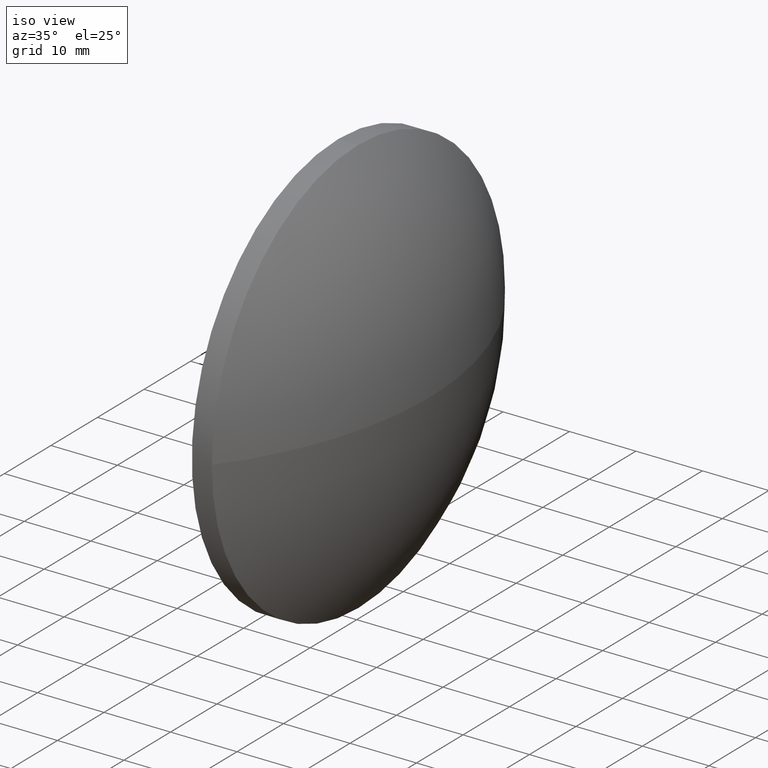
[diagram: clean part render]
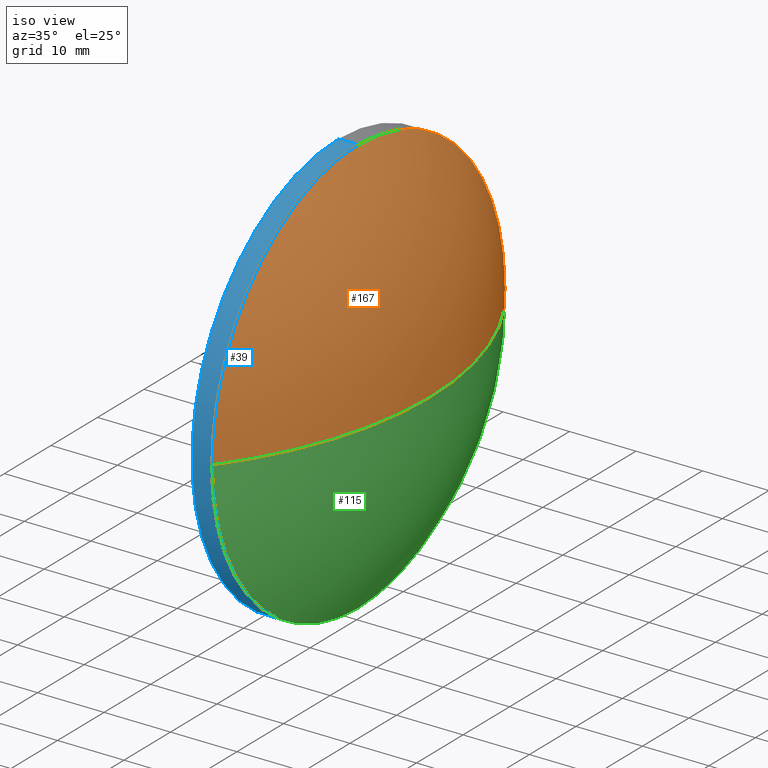
[diagram: same view with three faces highlighted in distinct colors, each labeled with its STEP entity id]
A machine part, iso view with three faces highlighted in distinct colors.
Their STEP definitions:

[orange] entity #167 — the highlighted spherical surface has radius 51.6403 mm.
#1 = ORIENTED_EDGE ( 'NONE', *, *, #159, .F. ) ;
#3 = CIRCLE ( 'NONE', #48, 31.50000000000000000 ) ;
#9 = CARTESIAN_POINT ( 'NONE',  ( 229.8933010013870400, 162.0185814569561000, 0.0000000000000000000 ) ) ;
#10 = CARTESIAN_POINT ( 'NONE',  ( 229.8933010013870400, 130.5185814569561000, 0.0000000000000000000 ) ) ;
#11 = AXIS2_PLACEMENT_3D ( 'NONE', #153, #47, #186 ) ;
#14 = CIRCLE ( 'NONE', #93, 51.64031716417910900 ) ;
#15 = DIRECTION ( 'NONE',  ( 0.0000000000000000000, 1.000000000000000000, 0.0000000000000000000 ) ) ;
#27 = DIRECTION ( 'NONE',  ( -0.0000000000000000000, 0.0000000000000000000, -1.000000000000000000 ) ) ;
#31 = CIRCLE ( 'NONE', #145, 31.50000000000000000 ) ;
#32 = EDGE_CURVE ( 'NONE', #37, #65, #3, .T. ) ;
#37 = VERTEX_POINT ( 'NONE', #128 ) ;
#40 = DIRECTION ( 'NONE',  ( -1.000000000000000000, -0.0000000000000000000, -0.0000000000000000000 ) ) ;
#47 = DIRECTION ( 'NONE',  ( 0.0000000000000000000, 1.224646799147353200E-016, -1.000000000000000000 ) ) ;
#48 = AXIS2_PLACEMENT_3D ( 'NONE', #184, #40, #151 ) ;
#53 = SPHERICAL_SURFACE ( 'NONE', #143, 51.64031716417910900 ) ;
#61 = ORIENTED_EDGE ( 'NONE', *, *, #112, .F. ) ;
#63 = ORIENTED_EDGE ( 'NONE', *, *, #77, .T. ) ;
#65 = VERTEX_POINT ( 'NONE', #9 ) ;
#69 = DIRECTION ( 'NONE',  ( 0.0000000000000000000, 0.0000000000000000000, 1.000000000000000000 ) ) ;
#75 = VERTEX_POINT ( 'NONE', #114 ) ;
#77 = EDGE_CURVE ( 'NONE', #75, #65, #14, .T. ) ;
#80 = CARTESIAN_POINT ( 'NONE',  ( 188.9729838372079500, 130.5185814569561000, 0.0000000000000000000 ) ) ;
#82 = CARTESIAN_POINT ( 'NONE',  ( 188.9729838372079500, 130.5185814569561000, 0.0000000000000000000 ) ) ;
#85 = VERTEX_POINT ( 'NONE', #164 ) ;
#93 = AXIS2_PLACEMENT_3D ( 'NONE', #80, #97, #181 ) ;
#97 = DIRECTION ( 'NONE',  ( -0.0000000000000000000, 0.0000000000000000000, 1.000000000000000000 ) ) ;
#98 = ORIENTED_EDGE ( 'NONE', *, *, #32, .F. ) ;
#112 = EDGE_CURVE ( 'NONE', #85, #37, #31, .T. ) ;
#113 = DIRECTION ( 'NONE',  ( -1.000000000000000000, -0.0000000000000000000, -0.0000000000000000000 ) ) ;
#114 = CARTESIAN_POINT ( 'NONE',  ( 240.6133010013870700, 130.5185814569561000, 0.0000000000000000000 ) ) ;
#124 = FACE_OUTER_BOUND ( 'NONE', #142, .T. ) ;
#128 = CARTESIAN_POINT ( 'NONE',  ( 229.8933010013870400, 130.5185814569561000, 31.50000000000000000 ) ) ;
#142 = EDGE_LOOP ( 'NONE', ( #1, #63, #98, #61 ) ) ;
#143 = AXIS2_PLACEMENT_3D ( 'NONE', #82, #27, #15 ) ;
#145 = AXIS2_PLACEMENT_3D ( 'NONE', #10, #113, #69 ) ;
#151 = DIRECTION ( 'NONE',  ( 0.0000000000000000000, 0.0000000000000000000, 1.000000000000000000 ) ) ;
#153 = CARTESIAN_POINT ( 'NONE',  ( 188.9729838372079500, 130.5185814569561000, 0.0000000000000000000 ) ) ;
#159 = EDGE_CURVE ( 'NONE', #75, #85, #160, .T. ) ;
#160 = CIRCLE ( 'NONE', #11, 51.64031716417910900 ) ;
#164 = CARTESIAN_POINT ( 'NONE',  ( 229.8933010013870400, 99.01858145695611300, -3.857637417314162700E-015 ) ) ;
#167 = ADVANCED_FACE ( 'NONE', ( #124 ), #53, .T. ) ;
#181 = DIRECTION ( 'NONE',  ( 1.000000000000000000, 0.0000000000000000000, 0.0000000000000000000 ) ) ;
#184 = CARTESIAN_POINT ( 'NONE',  ( 229.8933010013870400, 130.5185814569561000, 0.0000000000000000000 ) ) ;
#186 = DIRECTION ( 'NONE',  ( 0.0000000000000000000, 1.000000000000000000, 1.224646799147353200E-016 ) ) ;

[blue] entity #39 — the highlighted cylindrical surface (partial cylindrical patch) has radius 31.5 mm, axis along (-1, -0, -0).
#10 = CARTESIAN_POINT ( 'NONE',  ( 229.8933010013870400, 130.5185814569561000, 0.0000000000000000000 ) ) ;
#19 = CARTESIAN_POINT ( 'NONE',  ( 218.1236667371545400, 130.5185814569561000, -31.50000000000000000 ) ) ;
#20 = EDGE_CURVE ( 'NONE', #170, #126, #147, .T. ) ;
#29 = CARTESIAN_POINT ( 'NONE',  ( 226.8933010013870400, 130.5185814569561000, -31.50000000000000000 ) ) ;
#31 = CIRCLE ( 'NONE', #145, 31.50000000000000000 ) ;
#34 = EDGE_CURVE ( 'NONE', #41, #170, #146, .T. ) ;
#36 = DIRECTION ( 'NONE',  ( -1.000000000000000000, -0.0000000000000000000, -0.0000000000000000000 ) ) ;
#37 = VERTEX_POINT ( 'NONE', #128 ) ;
#39 = ADVANCED_FACE ( 'NONE', ( #51 ), #102, .T. ) ;
#41 = VERTEX_POINT ( 'NONE', #106 ) ;
#45 = ORIENTED_EDGE ( 'NONE', *, *, #112, .T. ) ;
#51 = FACE_OUTER_BOUND ( 'NONE', #79, .T. ) ;
#66 = DIRECTION ( 'NONE',  ( -1.000000000000000000, -0.0000000000000000000, -0.0000000000000000000 ) ) ;
#68 = CARTESIAN_POINT ( 'NONE',  ( 226.8933010013870400, 130.5185814569561000, 31.50000000000000000 ) ) ;
#69 = DIRECTION ( 'NONE',  ( 0.0000000000000000000, 0.0000000000000000000, 1.000000000000000000 ) ) ;
#71 = ORIENTED_EDGE ( 'NONE', *, *, #20, .F. ) ;
#78 = CARTESIAN_POINT ( 'NONE',  ( 226.8933010013870400, 130.5185814569561000, 0.0000000000000000000 ) ) ;
#79 = EDGE_LOOP ( 'NONE', ( #100, #140, #45, #103, #71 ) ) ;
#85 = VERTEX_POINT ( 'NONE', #164 ) ;
#89 = LINE ( 'NONE', #148, #158 ) ;
#90 = EDGE_CURVE ( 'NONE', #41, #85, #131, .T. ) ;
#94 = DIRECTION ( 'NONE',  ( 0.0000000000000000000, 0.0000000000000000000, 1.000000000000000000 ) ) ;
#96 = CARTESIAN_POINT ( 'NONE',  ( 229.8933010013870400, 130.5185814569561000, 0.0000000000000000000 ) ) ;
#100 = ORIENTED_EDGE ( 'NONE', *, *, #34, .F. ) ;
#102 = CYLINDRICAL_SURFACE ( 'NONE', #144, 31.50000000000000000 ) ;
#103 = ORIENTED_EDGE ( 'NONE', *, *, #139, .T. ) ;
#104 = DIRECTION ( 'NONE',  ( -1.000000000000000000, -0.0000000000000000000, -0.0000000000000000000 ) ) ;
#106 = CARTESIAN_POINT ( 'NONE',  ( 229.8933010013870400, 130.5185814569561000, -31.50000000000000000 ) ) ;
#112 = EDGE_CURVE ( 'NONE', #85, #37, #31, .T. ) ;
#113 = DIRECTION ( 'NONE',  ( -1.000000000000000000, -0.0000000000000000000, -0.0000000000000000000 ) ) ;
#121 = VECTOR ( 'NONE', #104, 1000.000000000000000 ) ;
#126 = VERTEX_POINT ( 'NONE', #68 ) ;
#128 = CARTESIAN_POINT ( 'NONE',  ( 229.8933010013870400, 130.5185814569561000, 31.50000000000000000 ) ) ;
#130 = DIRECTION ( 'NONE',  ( 0.0000000000000000000, 0.0000000000000000000, 1.000000000000000000 ) ) ;
#131 = CIRCLE ( 'NONE', #136, 31.50000000000000000 ) ;
#135 = DIRECTION ( 'NONE',  ( -1.000000000000000000, -0.0000000000000000000, -0.0000000000000000000 ) ) ;
#136 = AXIS2_PLACEMENT_3D ( 'NONE', #96, #166, #94 ) ;
#139 = EDGE_CURVE ( 'NONE', #37, #126, #89, .T. ) ;
#140 = ORIENTED_EDGE ( 'NONE', *, *, #90, .T. ) ;
#144 = AXIS2_PLACEMENT_3D ( 'NONE', #162, #135, #130 ) ;
#145 = AXIS2_PLACEMENT_3D ( 'NONE', #10, #113, #69 ) ;
#146 = LINE ( 'NONE', #19, #121 ) ;
#147 = CIRCLE ( 'NONE', #179, 31.50000000000000000 ) ;
#148 = CARTESIAN_POINT ( 'NONE',  ( 218.1236667371545400, 130.5185814569561000, 31.50000000000000000 ) ) ;
#150 = DIRECTION ( 'NONE',  ( 0.0000000000000000000, 0.0000000000000000000, 1.000000000000000000 ) ) ;
#158 = VECTOR ( 'NONE', #66, 1000.000000000000000 ) ;
#162 = CARTESIAN_POINT ( 'NONE',  ( 218.1236667371545400, 130.5185814569561000, 0.0000000000000000000 ) ) ;
#164 = CARTESIAN_POINT ( 'NONE',  ( 229.8933010013870400, 99.01858145695611300, -3.857637417314162700E-015 ) ) ;
#166 = DIRECTION ( 'NONE',  ( -1.000000000000000000, -0.0000000000000000000, -0.0000000000000000000 ) ) ;
#170 = VERTEX_POINT ( 'NONE', #29 ) ;
#179 = AXIS2_PLACEMENT_3D ( 'NONE', #78, #36, #150 ) ;

[green] entity #115 — the highlighted spherical surface has radius 51.6403 mm.
#6 = ORIENTED_EDGE ( 'NONE', *, *, #159, .T. ) ;
#7 = DIRECTION ( 'NONE',  ( 0.0000000000000000000, 0.0000000000000000000, 1.000000000000000000 ) ) ;
#9 = CARTESIAN_POINT ( 'NONE',  ( 229.8933010013870400, 162.0185814569561000, 0.0000000000000000000 ) ) ;
#11 = AXIS2_PLACEMENT_3D ( 'NONE', #153, #47, #186 ) ;
#14 = CIRCLE ( 'NONE', #93, 51.64031716417910900 ) ;
#25 = ORIENTED_EDGE ( 'NONE', *, *, #77, .F. ) ;
#33 = ORIENTED_EDGE ( 'NONE', *, *, #90, .F. ) ;
#35 = SPHERICAL_SURFACE ( 'NONE', #88, 51.64031716417910900 ) ;
#38 = DIRECTION ( 'NONE',  ( 0.0000000000000000000, 1.000000000000000000, 0.0000000000000000000 ) ) ;
#41 = VERTEX_POINT ( 'NONE', #106 ) ;
#47 = DIRECTION ( 'NONE',  ( 0.0000000000000000000, 1.224646799147353200E-016, -1.000000000000000000 ) ) ;
#62 = FACE_OUTER_BOUND ( 'NONE', #107, .T. ) ;
#65 = VERTEX_POINT ( 'NONE', #9 ) ;
#75 = VERTEX_POINT ( 'NONE', #114 ) ;
#77 = EDGE_CURVE ( 'NONE', #75, #65, #14, .T. ) ;
#80 = CARTESIAN_POINT ( 'NONE',  ( 188.9729838372079500, 130.5185814569561000, 0.0000000000000000000 ) ) ;
#81 = EDGE_CURVE ( 'NONE', #65, #41, #177, .T. ) ;
#84 = CARTESIAN_POINT ( 'NONE',  ( 188.9729838372079500, 130.5185814569561000, 0.0000000000000000000 ) ) ;
#85 = VERTEX_POINT ( 'NONE', #164 ) ;
#88 = AXIS2_PLACEMENT_3D ( 'NONE', #84, #134, #38 ) ;
#90 = EDGE_CURVE ( 'NONE', #41, #85, #131, .T. ) ;
#93 = AXIS2_PLACEMENT_3D ( 'NONE', #80, #97, #181 ) ;
#94 = DIRECTION ( 'NONE',  ( 0.0000000000000000000, 0.0000000000000000000, 1.000000000000000000 ) ) ;
#96 = CARTESIAN_POINT ( 'NONE',  ( 229.8933010013870400, 130.5185814569561000, 0.0000000000000000000 ) ) ;
#97 = DIRECTION ( 'NONE',  ( -0.0000000000000000000, 0.0000000000000000000, 1.000000000000000000 ) ) ;
#106 = CARTESIAN_POINT ( 'NONE',  ( 229.8933010013870400, 130.5185814569561000, -31.50000000000000000 ) ) ;
#107 = EDGE_LOOP ( 'NONE', ( #25, #6, #33, #156 ) ) ;
#114 = CARTESIAN_POINT ( 'NONE',  ( 240.6133010013870700, 130.5185814569561000, 0.0000000000000000000 ) ) ;
#115 = ADVANCED_FACE ( 'NONE', ( #62 ), #35, .T. ) ;
#129 = DIRECTION ( 'NONE',  ( -1.000000000000000000, -0.0000000000000000000, -0.0000000000000000000 ) ) ;
#131 = CIRCLE ( 'NONE', #136, 31.50000000000000000 ) ;
#133 = AXIS2_PLACEMENT_3D ( 'NONE', #169, #129, #7 ) ;
#134 = DIRECTION ( 'NONE',  ( -0.0000000000000000000, 0.0000000000000000000, -1.000000000000000000 ) ) ;
#136 = AXIS2_PLACEMENT_3D ( 'NONE', #96, #166, #94 ) ;
#153 = CARTESIAN_POINT ( 'NONE',  ( 188.9729838372079500, 130.5185814569561000, 0.0000000000000000000 ) ) ;
#156 = ORIENTED_EDGE ( 'NONE', *, *, #81, .F. ) ;
#159 = EDGE_CURVE ( 'NONE', #75, #85, #160, .T. ) ;
#160 = CIRCLE ( 'NONE', #11, 51.64031716417910900 ) ;
#164 = CARTESIAN_POINT ( 'NONE',  ( 229.8933010013870400, 99.01858145695611300, -3.857637417314162700E-015 ) ) ;
#166 = DIRECTION ( 'NONE',  ( -1.000000000000000000, -0.0000000000000000000, -0.0000000000000000000 ) ) ;
#169 = CARTESIAN_POINT ( 'NONE',  ( 229.8933010013870400, 130.5185814569561000, 0.0000000000000000000 ) ) ;
#177 = CIRCLE ( 'NONE', #133, 31.50000000000000000 ) ;
#181 = DIRECTION ( 'NONE',  ( 1.000000000000000000, 0.0000000000000000000, 0.0000000000000000000 ) ) ;
#186 = DIRECTION ( 'NONE',  ( 0.0000000000000000000, 1.000000000000000000, 1.224646799147353200E-016 ) ) ;